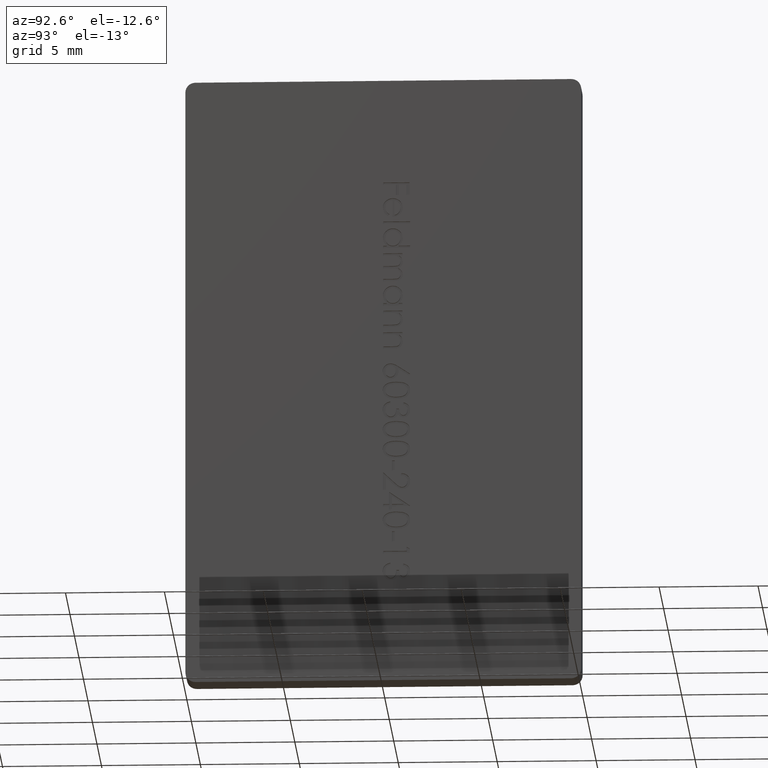
[diagram: clean part render]
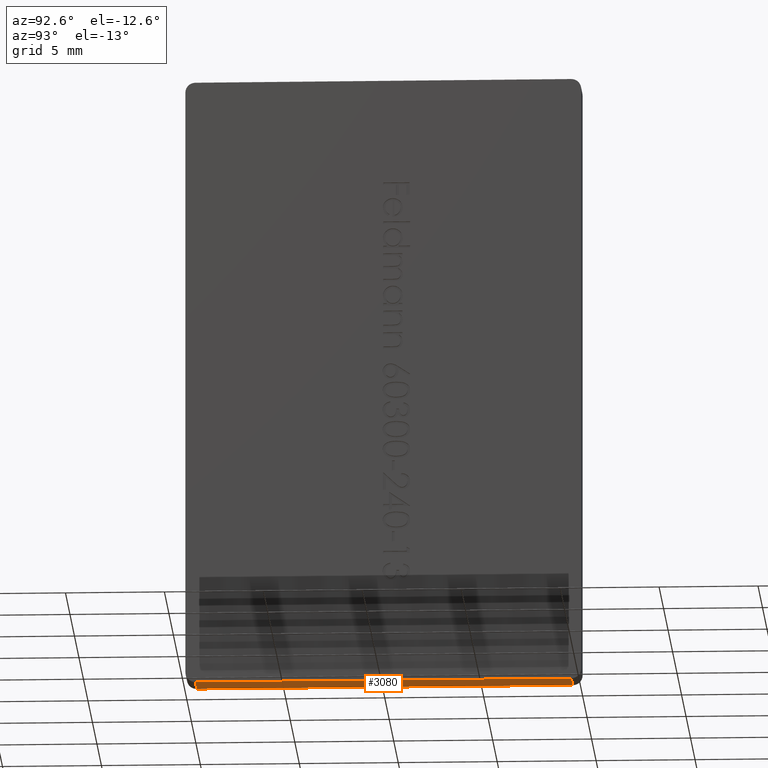
[diagram: same view with one face highlighted and labeled with its STEP entity id]
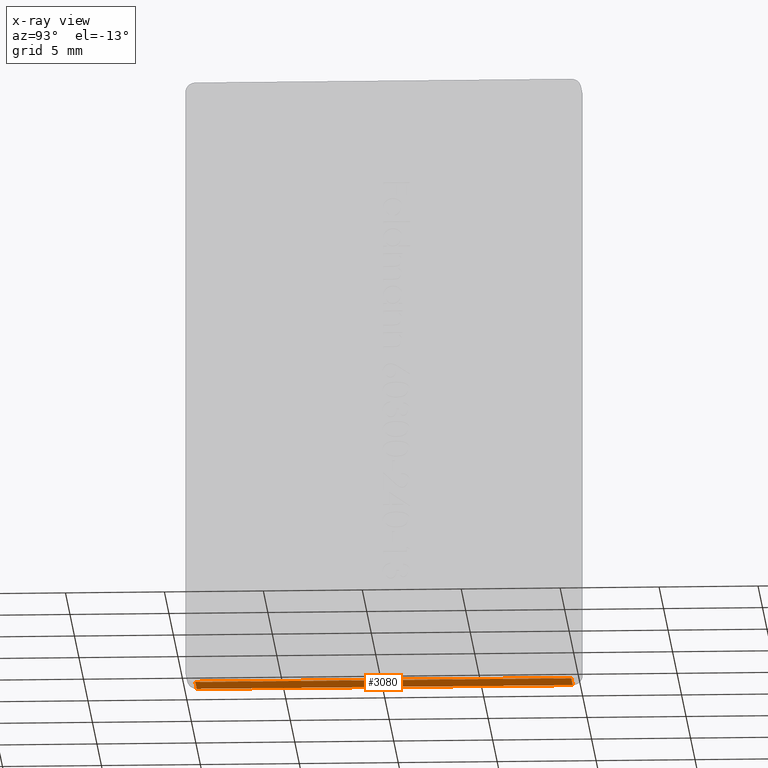
[diagram: x-ray of the same camera — body ghosted, the highlighted face saturated]
A machine part, auxiliary view. The second image highlights one B-rep face of the part: STEP entity #3080.
The next image is the same camera in x-ray: the body ghosted, the highlighted face saturated — about 0% of this face is hidden behind the body in this view.
In plain terms, the highlighted planar face has unit normal (0, 0, 1).
Its self-contained STEP definition (entity closure, byte-faithful):
#469 = CARTESIAN_POINT ( 'NONE',  ( 1.620000000000000995, 0.5000000000000035527, -31.00000000000000000 ) ) ;
#485 = CARTESIAN_POINT ( 'NONE',  ( 1.620000000000000995, 19.49999999999999645, -31.00000000000000000 ) ) ;
#1917 = DIRECTION ( 'NONE',  ( 0.000000000000000000, 1.000000000000000000, 0.000000000000000000 ) ) ;
#2457 = CARTESIAN_POINT ( 'NONE',  ( 0.000000000000000000, 19.49999999999999645, -31.00000000000000000 ) ) ;
#2641 = ORIENTED_EDGE ( 'NONE', *, *, #12502, .T. ) ;
#2741 = ORIENTED_EDGE ( 'NONE', *, *, #6856, .F. ) ;
#2986 = VECTOR ( 'NONE', #1917, 1000.000000000000000 ) ;
#3080 = ADVANCED_FACE ( 'NONE', ( #3776 ), #13245, .F. ) ;
#3108 = CARTESIAN_POINT ( 'NONE',  ( 0.000000000000000000, 0.5000000000000035527, -31.00000000000000000 ) ) ;
#3776 = FACE_OUTER_BOUND ( 'NONE', #12170, .T. ) ;
#4417 = LINE ( 'NONE', #469, #5705 ) ;
#5025 = ORIENTED_EDGE ( 'NONE', *, *, #11025, .F. ) ;
#5557 = VERTEX_POINT ( 'NONE', #2457 ) ;
#5705 = VECTOR ( 'NONE', #14846, 1000.000000000000000 ) ;
#6108 = DIRECTION ( 'NONE',  ( 0.000000000000000000, 0.000000000000000000, 1.000000000000000000 ) ) ;
#6561 = CARTESIAN_POINT ( 'NONE',  ( 0.000000000000000000, 0.5000000000000035527, -31.00000000000000000 ) ) ;
#6647 = DIRECTION ( 'NONE',  ( 0.000000000000000000, 1.000000000000000000, 0.000000000000000000 ) ) ;
#6856 = EDGE_CURVE ( 'NONE', #7873, #11626, #11928, .T. ) ;
#7073 = VECTOR ( 'NONE', #6647, 1000.000000000000000 ) ;
#7873 = VERTEX_POINT ( 'NONE', #9839 ) ;
#8742 = LINE ( 'NONE', #485, #13013 ) ;
#8967 = CARTESIAN_POINT ( 'NONE',  ( 1.620000000000000995, 0.5000000000000035527, -31.00000000000000000 ) ) ;
#9454 = DIRECTION ( 'NONE',  ( 1.000000000000000000, 0.000000000000000000, -0.000000000000000000 ) ) ;
#9764 = ORIENTED_EDGE ( 'NONE', *, *, #10588, .T. ) ;
#9788 = CARTESIAN_POINT ( 'NONE',  ( 1.620000000000000995, 19.49999999999999645, -31.00000000000000000 ) ) ;
#9839 = CARTESIAN_POINT ( 'NONE',  ( 1.620000000000000995, 0.5000000000000035527, -31.00000000000000000 ) ) ;
#10588 = EDGE_CURVE ( 'NONE', #11401, #5557, #12643, .T. ) ;
#11025 = EDGE_CURVE ( 'NONE', #11626, #5557, #8742, .T. ) ;
#11401 = VERTEX_POINT ( 'NONE', #6561 ) ;
#11626 = VERTEX_POINT ( 'NONE', #9788 ) ;
#11928 = LINE ( 'NONE', #8967, #2986 ) ;
#12170 = EDGE_LOOP ( 'NONE', ( #9764, #5025, #2741, #2641 ) ) ;
#12502 = EDGE_CURVE ( 'NONE', #7873, #11401, #4417, .T. ) ;
#12643 = LINE ( 'NONE', #3108, #7073 ) ;
#13013 = VECTOR ( 'NONE', #14858, 1000.000000000000000 ) ;
#13245 = PLANE ( 'NONE',  #14345 ) ;
#14345 = AXIS2_PLACEMENT_3D ( 'NONE', #14408, #6108, #9454 ) ;
#14408 = CARTESIAN_POINT ( 'NONE',  ( 1.620000000000000995, 0.5000000000000035527, -31.00000000000000000 ) ) ;
#14846 = DIRECTION ( 'NONE',  ( -1.000000000000000000, -0.000000000000000000, -0.000000000000000000 ) ) ;
#14858 = DIRECTION ( 'NONE',  ( -1.000000000000000000, -0.000000000000000000, -0.000000000000000000 ) ) ;